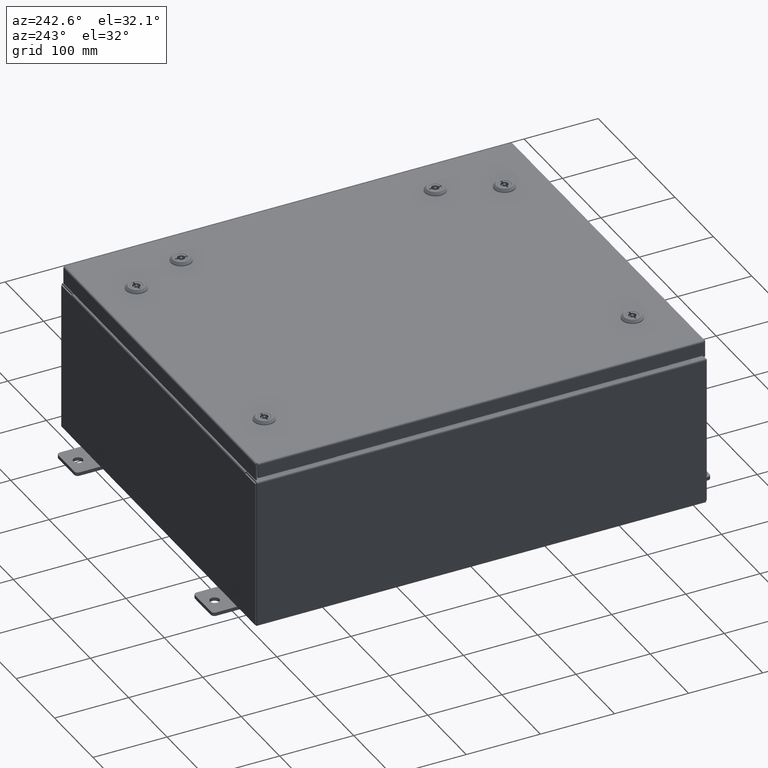
[diagram: clean part render]
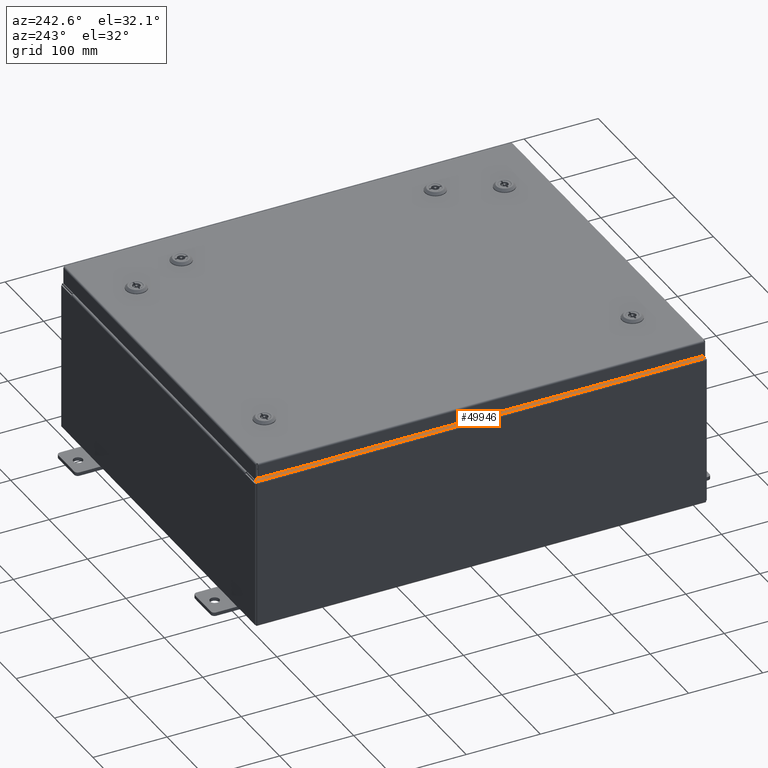
[diagram: same view with one face highlighted and labeled with its STEP entity id]
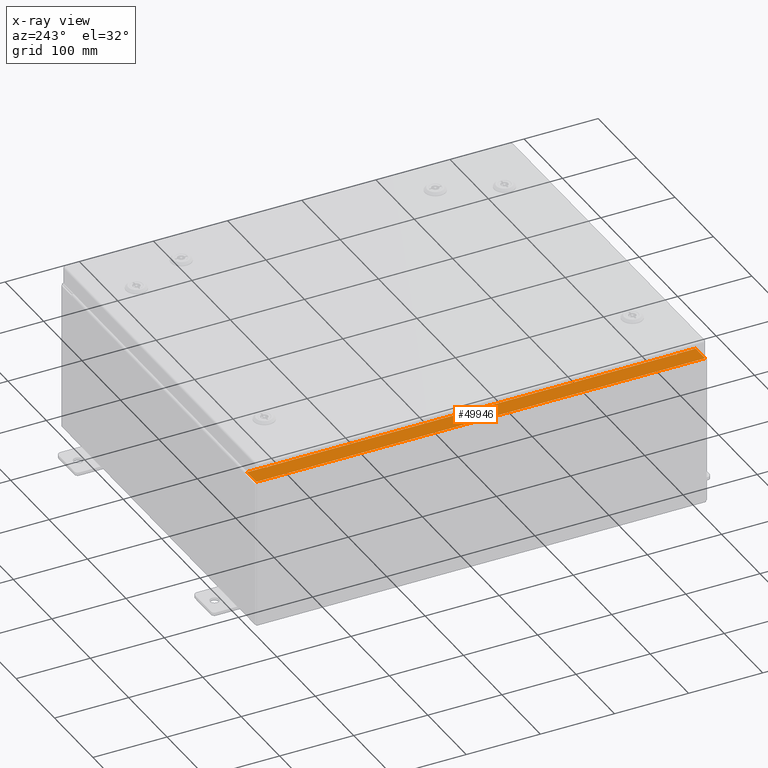
[diagram: x-ray of the same camera — body ghosted, the highlighted face saturated]
A machine part, auxiliary view. The second image highlights one B-rep face of the part: STEP entity #49946.
The next image is the same camera in x-ray: the body ghosted, the highlighted face saturated — about 0% of this face is hidden behind the body in this view.
In plain terms, the highlighted planar face has unit normal (0, 0, -1).
Its self-contained STEP definition (entity closure, byte-faithful):
#141 = LINE ( 'NONE', #33964, #23099 ) ;
#1578 = ORIENTED_EDGE ( 'NONE', *, *, #46063, .F. ) ;
#1643 = VERTEX_POINT ( 'NONE', #5273 ) ;
#1695 = VERTEX_POINT ( 'NONE', #59477 ) ;
#1775 = VERTEX_POINT ( 'NONE', #40171 ) ;
#2398 = FACE_OUTER_BOUND ( 'NONE', #61472, .T. ) ;
#2946 = PLANE ( 'NONE',  #30215 ) ;
#3032 = LINE ( 'NONE', #10858, #53607 ) ;
#3636 = DIRECTION ( 'NONE',  ( -1.000000000000000000, 0.0000000000000000000, 0.0000000000000000000 ) ) ;
#4168 = VECTOR ( 'NONE', #63193, 39.37007874015748100 ) ;
#4658 = DIRECTION ( 'NONE',  ( -0.0000000000000000000, -1.000000000000000000, -0.0000000000000000000 ) ) ;
#5067 = CARTESIAN_POINT ( 'NONE',  ( -9.912300000000028500, -11.92529999999999500, 7.925300000000000000 ) ) ;
#5273 = CARTESIAN_POINT ( 'NONE',  ( -8.962700000000030100, -10.84374999999999300, 7.925300000000006200 ) ) ;
#5663 = CARTESIAN_POINT ( 'NONE',  ( -9.000050000000030100, -10.88109999999999100, 7.925300000000006200 ) ) ;
#6072 = DIRECTION ( 'NONE',  ( 1.000000000000000000, 2.240137756182257300E-015, 6.720413268546771600E-015 ) ) ;
#9154 = LINE ( 'NONE', #28270, #22194 ) ;
#9873 = VERTEX_POINT ( 'NONE', #5067 ) ;
#10473 = CARTESIAN_POINT ( 'NONE',  ( -5.352210493322575300E-014, 11.92530000000000000, 7.925300000000066600 ) ) ;
#10773 = EDGE_CURVE ( 'NONE', #9873, #56641, #48870, .T. ) ;
#10858 = CARTESIAN_POINT ( 'NONE',  ( -8.962700000000030100, -10.84374999999999300, 7.925300000000006200 ) ) ;
#11957 = VERTEX_POINT ( 'NONE', #39719 ) ;
#12535 = VERTEX_POINT ( 'NONE', #44344 ) ;
#12580 = ORIENTED_EDGE ( 'NONE', *, *, #24530, .F. ) ;
#12666 = VECTOR ( 'NONE', #54631, 39.37007874015748100 ) ;
#12789 = CARTESIAN_POINT ( 'NONE',  ( -5.352210493322575300E-014, 0.0000000000000000000, 7.925300000000066600 ) ) ;
#12960 = VECTOR ( 'NONE', #54711, 39.37007874015748100 ) ;
#13328 = CIRCLE ( 'NONE', #26856, 0.01867499999999949400 ) ;
#13352 = ORIENTED_EDGE ( 'NONE', *, *, #10773, .T. ) ;
#14082 = EDGE_CURVE ( 'NONE', #9873, #31682, #63364, .T. ) ;
#14824 = ORIENTED_EDGE ( 'NONE', *, *, #17467, .T. ) ;
#15440 = CARTESIAN_POINT ( 'NONE',  ( -8.949700000000028400, -11.92529999999999500, 7.925300000000006200 ) ) ;
#15736 = LINE ( 'NONE', #10473, #12666 ) ;
#16477 = ORIENTED_EDGE ( 'NONE', *, *, #21889, .T. ) ;
#16587 = DIRECTION ( 'NONE',  ( 0.0000000000000000000, 1.000000000000000000, 0.0000000000000000000 ) ) ;
#16876 = CIRCLE ( 'NONE', #24919, 0.01867499999999949400 ) ;
#17467 = EDGE_CURVE ( 'NONE', #11957, #1775, #52607, .T. ) ;
#17609 = ORIENTED_EDGE ( 'NONE', *, *, #27397, .F. ) ;
#17697 = DIRECTION ( 'NONE',  ( -1.000000000000000000, 0.0000000000000000000, -6.720413268546771600E-015 ) ) ;
#19140 = ORIENTED_EDGE ( 'NONE', *, *, #27156, .F. ) ;
#19960 = CARTESIAN_POINT ( 'NONE',  ( -9.912300000000028500, 11.92530000000000000, 7.925300000000000000 ) ) ;
#21442 = CARTESIAN_POINT ( 'NONE',  ( -9.000050000000030100, 10.86242500000000000, 7.925300000000006200 ) ) ;
#21889 = EDGE_CURVE ( 'NONE', #56641, #12535, #38493, .T. ) ;
#22029 = DIRECTION ( 'NONE',  ( -6.720413268546770800E-015, -0.0000000000000000000, 1.000000000000000000 ) ) ;
#22194 = VECTOR ( 'NONE', #3636, 39.37007874015748100 ) ;
#23099 = VECTOR ( 'NONE', #4658, 39.37007874015748100 ) ;
#23378 = EDGE_CURVE ( 'NONE', #62093, #1643, #141, .T. ) ;
#23884 = ORIENTED_EDGE ( 'NONE', *, *, #23378, .F. ) ;
#23932 = CARTESIAN_POINT ( 'NONE',  ( -9.000050000000030100, 10.84375000000000200, 7.925300000000006200 ) ) ;
#24530 = EDGE_CURVE ( 'NONE', #1695, #38898, #16876, .T. ) ;
#24585 = CARTESIAN_POINT ( 'NONE',  ( -8.962700000000030100, 10.84375000000000200, 7.925300000000006200 ) ) ;
#24919 = AXIS2_PLACEMENT_3D ( 'NONE', #51407, #22029, #56343 ) ;
#26394 = DIRECTION ( 'NONE',  ( 1.000000000000000000, 0.0000000000000000000, 0.0000000000000000000 ) ) ;
#26554 = CARTESIAN_POINT ( 'NONE',  ( -8.949700000000028400, 0.0000000000000000000, 7.925300000000006200 ) ) ;
#26856 = AXIS2_PLACEMENT_3D ( 'NONE', #21442, #55760, #26394 ) ;
#27156 = EDGE_CURVE ( 'NONE', #11957, #63307, #9154, .T. ) ;
#27397 = EDGE_CURVE ( 'NONE', #1643, #1695, #3032, .T. ) ;
#28270 = CARTESIAN_POINT ( 'NONE',  ( -8.949700000000028400, 10.88110000000000000, 7.925300000000006200 ) ) ;
#30215 = AXIS2_PLACEMENT_3D ( 'NONE', #12789, #47074, #17697 ) ;
#31682 = VERTEX_POINT ( 'NONE', #56418 ) ;
#33964 = CARTESIAN_POINT ( 'NONE',  ( -8.962700000000030100, 10.84375000000000200, 7.925300000000006200 ) ) ;
#34521 = DIRECTION ( 'NONE',  ( -0.0000000000000000000, 1.000000000000000000, -0.0000000000000000000 ) ) ;
#34858 = VERTEX_POINT ( 'NONE', #44820 ) ;
#34859 = EDGE_CURVE ( 'NONE', #38898, #12535, #38996, .T. ) ;
#35798 = VECTOR ( 'NONE', #6072, 39.37007874015748100 ) ;
#36356 = DIRECTION ( 'NONE',  ( 0.0000000000000000000, 1.000000000000000000, 0.0000000000000000000 ) ) ;
#36767 = ORIENTED_EDGE ( 'NONE', *, *, #39804, .T. ) ;
#38493 = LINE ( 'NONE', #26554, #50058 ) ;
#38898 = VERTEX_POINT ( 'NONE', #45984 ) ;
#38996 = LINE ( 'NONE', #5663, #12960 ) ;
#39574 = VECTOR ( 'NONE', #16587, 39.37007874015748100 ) ;
#39719 = CARTESIAN_POINT ( 'NONE',  ( -8.949700000000028400, 10.88110000000000000, 7.925300000000006200 ) ) ;
#39745 = CARTESIAN_POINT ( 'NONE',  ( -9.000050000000030100, 10.88110000000000000, 7.925300000000006200 ) ) ;
#39804 = EDGE_CURVE ( 'NONE', #1775, #31682, #15736, .T. ) ;
#40171 = CARTESIAN_POINT ( 'NONE',  ( -8.949700000000028400, 11.92530000000000000, 7.925300000000006200 ) ) ;
#43245 = LINE ( 'NONE', #23932, #4168 ) ;
#44344 = CARTESIAN_POINT ( 'NONE',  ( -8.949700000000028400, -10.88109999999999100, 7.925300000000006200 ) ) ;
#44820 = CARTESIAN_POINT ( 'NONE',  ( -9.000050000000030100, 10.84375000000000200, 7.925300000000006200 ) ) ;
#45984 = CARTESIAN_POINT ( 'NONE',  ( -9.000050000000030100, -10.88109999999999100, 7.925300000000006200 ) ) ;
#46063 = EDGE_CURVE ( 'NONE', #34858, #62093, #43245, .T. ) ;
#46725 = EDGE_CURVE ( 'NONE', #63307, #34858, #13328, .T. ) ;
#47074 = DIRECTION ( 'NONE',  ( 6.720413268546771600E-015, 0.0000000000000000000, -1.000000000000000000 ) ) ;
#48870 = LINE ( 'NONE', #49980, #35798 ) ;
#49946 = ADVANCED_FACE ( 'NONE', ( #2398 ), #2946, .F. ) ;
#49980 = CARTESIAN_POINT ( 'NONE',  ( -2.680779014942552900E-014, -11.92529999999997700, 7.925300000000066600 ) ) ;
#50058 = VECTOR ( 'NONE', #36356, 39.37007874015748100 ) ;
#51407 = CARTESIAN_POINT ( 'NONE',  ( -9.000050000000030100, -10.86242499999999100, 7.925300000000006200 ) ) ;
#51440 = ORIENTED_EDGE ( 'NONE', *, *, #46725, .F. ) ;
#51998 = ORIENTED_EDGE ( 'NONE', *, *, #34859, .F. ) ;
#52607 = LINE ( 'NONE', #55640, #39574 ) ;
#53607 = VECTOR ( 'NONE', #54997, 39.37007874015748100 ) ;
#54631 = DIRECTION ( 'NONE',  ( -1.000000000000000000, 0.0000000000000000000, -6.720413268546771600E-015 ) ) ;
#54711 = DIRECTION ( 'NONE',  ( 1.000000000000000000, 0.0000000000000000000, 0.0000000000000000000 ) ) ;
#54997 = DIRECTION ( 'NONE',  ( -1.000000000000000000, 0.0000000000000000000, 0.0000000000000000000 ) ) ;
#55640 = CARTESIAN_POINT ( 'NONE',  ( -8.949700000000028400, 0.0000000000000000000, 7.925300000000006200 ) ) ;
#55760 = DIRECTION ( 'NONE',  ( -6.720413268546770800E-015, -0.0000000000000000000, 1.000000000000000000 ) ) ;
#56343 = DIRECTION ( 'NONE',  ( 1.000000000000000000, 0.0000000000000000000, 0.0000000000000000000 ) ) ;
#56418 = CARTESIAN_POINT ( 'NONE',  ( -9.912300000000028500, 11.92530000000000000, 7.925300000000000000 ) ) ;
#56641 = VERTEX_POINT ( 'NONE', #15440 ) ;
#57247 = ORIENTED_EDGE ( 'NONE', *, *, #14082, .F. ) ;
#59477 = CARTESIAN_POINT ( 'NONE',  ( -9.000050000000030100, -10.84374999999999300, 7.925300000000006200 ) ) ;
#60299 = VECTOR ( 'NONE', #34521, 39.37007874015748100 ) ;
#61472 = EDGE_LOOP ( 'NONE', ( #19140, #14824, #36767, #57247, #13352, #16477, #51998, #12580, #17609, #23884, #1578, #51440 ) ) ;
#62093 = VERTEX_POINT ( 'NONE', #24585 ) ;
#63193 = DIRECTION ( 'NONE',  ( 1.000000000000000000, 0.0000000000000000000, 0.0000000000000000000 ) ) ;
#63307 = VERTEX_POINT ( 'NONE', #39745 ) ;
#63364 = LINE ( 'NONE', #19960, #60299 ) ;